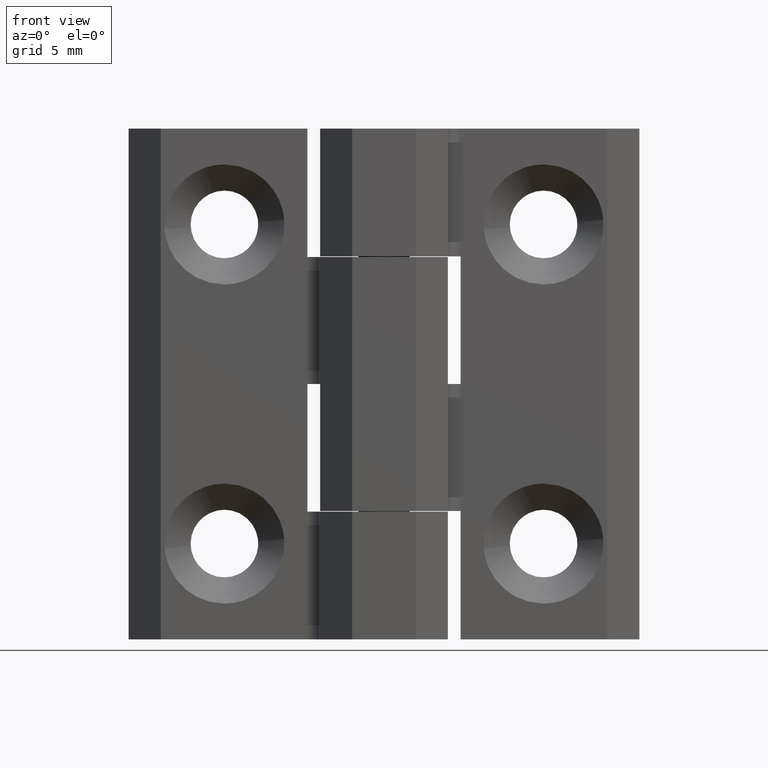
[diagram: clean part render]
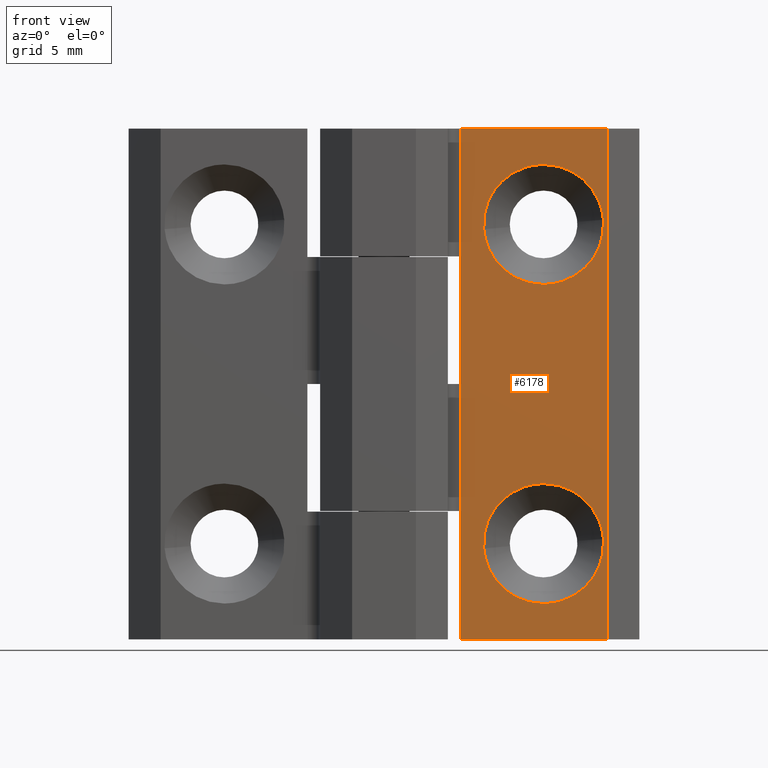
[diagram: same view with one face highlighted and labeled with its STEP entity id]
A machine part, front view. The second image highlights one B-rep face of the part: STEP entity #6178.
In plain terms, the highlighted face is a freeform B-spline surface patch.
Its self-contained STEP definition (entity closure, byte-faithful):
#826=CARTESIAN_POINT('',(17.185512877046289,0.500000023320734,32.868759358664789));
#827=VERTEX_POINT('',#826);
#833=CARTESIAN_POINT('',(12.500000593714040,0.500000023749374,37.200002360619209));
#834=VERTEX_POINT('',#833);
#835=CARTESIAN_POINT('',(12.500000593714040,0.500000023749374,37.200002360619209));
#836=CARTESIAN_POINT('',(16.844636657930899,0.500000023749374,37.200002360619209));
#837=CARTESIAN_POINT('',(17.185512877046289,0.500000023320734,32.868759358664789));
#845=(BOUNDED_CURVE()B_SPLINE_CURVE(2,(#835,#836,#837),.UNSPECIFIED.,.F.,.U.)B_SPLINE_CURVE_WITH_KNOTS((3,3),(0.0,0.236331300563560),.UNSPECIFIED.)CURVE()GEOMETRIC_REPRESENTATION_ITEM()RATIONAL_B_SPLINE_CURVE((1.0,0.723120658686278,0.969723356027386))REPRESENTATION_ITEM(''));
#846=EDGE_CURVE('',#834,#827,#845,.T.);
#848=CARTESIAN_POINT('',(7.814488310381785,0.500000023320733,32.131243728669517));
#849=VERTEX_POINT('',#848);
#850=CARTESIAN_POINT('',(7.814488310381785,0.500000023320733,32.131243728669531));
#851=CARTESIAN_POINT('',(7.799999776761979,0.500000023749374,32.315338007682769));
#852=CARTESIAN_POINT('',(7.799999776761979,0.500000023749374,32.500001543667153));
#853=CARTESIAN_POINT('',(7.799999776761977,0.500000023749374,37.200002360619216));
#854=CARTESIAN_POINT('',(12.500000593714040,0.500000023749374,37.200002360619209));
#862=(BOUNDED_CURVE()B_SPLINE_CURVE(2,(#850,#851,#852,#853,#854),.UNSPECIFIED.,.F.,.U.)B_SPLINE_CURVE_WITH_KNOTS((3,2,3),(0.736331300563560,0.750000000000000,1.0),.UNSPECIFIED.)CURVE()GEOMETRIC_REPRESENTATION_ITEM()RATIONAL_B_SPLINE_CURVE((0.969723356027386,0.983986122500270,1.0,0.707106781186547,1.0))REPRESENTATION_ITEM(''));
#863=EDGE_CURVE('',#849,#834,#862,.T.);
#897=CARTESIAN_POINT('',(12.500000593714040,0.500000023749374,27.800000726715091));
#898=VERTEX_POINT('',#897);
#899=CARTESIAN_POINT('',(12.500000593714040,0.500000023749374,27.800000726715091));
#900=CARTESIAN_POINT('',(8.155364529497193,0.500000023749374,27.800000726715094));
#901=CARTESIAN_POINT('',(7.814488310381785,0.500000023320733,32.131243728669531));
#909=(BOUNDED_CURVE()B_SPLINE_CURVE(2,(#899,#900,#901),.UNSPECIFIED.,.F.,.U.)B_SPLINE_CURVE_WITH_KNOTS((3,3),(0.500000000000000,0.736331300563559),.UNSPECIFIED.)CURVE()GEOMETRIC_REPRESENTATION_ITEM()RATIONAL_B_SPLINE_CURVE((1.0,0.723120658686279,0.969723356027384))REPRESENTATION_ITEM(''));
#910=EDGE_CURVE('',#898,#849,#909,.T.);
#912=CARTESIAN_POINT('',(17.185512877046285,0.500000023320734,32.868759358664789));
#913=CARTESIAN_POINT('',(17.200001410666104,0.500000023749374,32.684665079651538));
#914=CARTESIAN_POINT('',(17.200001410666101,0.500000023749374,32.500001543667153));
#915=CARTESIAN_POINT('',(17.200001410666097,0.500000023749374,27.800000726715091));
#916=CARTESIAN_POINT('',(12.500000593714040,0.500000023749374,27.800000726715091));
#924=(BOUNDED_CURVE()B_SPLINE_CURVE(2,(#912,#913,#914,#915,#916),.UNSPECIFIED.,.F.,.U.)B_SPLINE_CURVE_WITH_KNOTS((3,2,3),(0.236331300563560,0.250000000000000,0.500000000000000),.UNSPECIFIED.)CURVE()GEOMETRIC_REPRESENTATION_ITEM()RATIONAL_B_SPLINE_CURVE((0.969723356027386,0.983986122500270,1.0,0.707106781186547,1.0))REPRESENTATION_ITEM(''));
#925=EDGE_CURVE('',#827,#898,#924,.T.);
#1166=CARTESIAN_POINT('',(17.185512877046289,0.500000023320734,7.868759358664814));
#1167=VERTEX_POINT('',#1166);
#1173=CARTESIAN_POINT('',(12.500000593714040,0.500000023749374,12.200002360619241));
#1174=VERTEX_POINT('',#1173);
#1175=CARTESIAN_POINT('',(12.500000593714040,0.500000023749374,12.200002360619241));
#1176=CARTESIAN_POINT('',(16.844636657930895,0.500000023749374,12.200002360619239));
#1177=CARTESIAN_POINT('',(17.185512877046282,0.500000023320734,7.868759358664814));
#1185=(BOUNDED_CURVE()B_SPLINE_CURVE(2,(#1175,#1176,#1177),.UNSPECIFIED.,.F.,.U.)B_SPLINE_CURVE_WITH_KNOTS((3,3),(0.0,0.236331300563560),.UNSPECIFIED.)CURVE()GEOMETRIC_REPRESENTATION_ITEM()RATIONAL_B_SPLINE_CURVE((1.0,0.723120658686278,0.969723356027385))REPRESENTATION_ITEM(''));
#1186=EDGE_CURVE('',#1174,#1167,#1185,.T.);
#1188=CARTESIAN_POINT('',(7.814488310381786,0.500000023320733,7.131243728669546));
#1189=VERTEX_POINT('',#1188);
#1190=CARTESIAN_POINT('',(7.814488310381786,0.500000023320733,7.131243728669546));
#1191=CARTESIAN_POINT('',(7.799999776761978,0.500000023749374,7.315338007682798));
#1192=CARTESIAN_POINT('',(7.799999776761979,0.500000023749374,7.500001543667180));
#1193=CARTESIAN_POINT('',(7.799999776761977,0.500000023749374,12.200002360619241));
#1194=CARTESIAN_POINT('',(12.500000593714040,0.500000023749374,12.200002360619241));
#1202=(BOUNDED_CURVE()B_SPLINE_CURVE(2,(#1190,#1191,#1192,#1193,#1194),.UNSPECIFIED.,.F.,.U.)B_SPLINE_CURVE_WITH_KNOTS((3,2,3),(0.736331300563560,0.750000000000000,1.0),.UNSPECIFIED.)CURVE()GEOMETRIC_REPRESENTATION_ITEM()RATIONAL_B_SPLINE_CURVE((0.969723356027386,0.983986122500270,1.0,0.707106781186547,1.0))REPRESENTATION_ITEM(''));
#1203=EDGE_CURVE('',#1189,#1174,#1202,.T.);
#1237=CARTESIAN_POINT('',(12.500000593714040,0.500000023749374,2.800000726715120));
#1238=VERTEX_POINT('',#1237);
#1239=CARTESIAN_POINT('',(12.500000593714040,0.500000023749374,2.800000726715120));
#1240=CARTESIAN_POINT('',(8.155364529497193,0.500000023749374,2.800000726715120));
#1241=CARTESIAN_POINT('',(7.814488310381786,0.500000023320733,7.131243728669546));
#1249=(BOUNDED_CURVE()B_SPLINE_CURVE(2,(#1239,#1240,#1241),.UNSPECIFIED.,.F.,.U.)B_SPLINE_CURVE_WITH_KNOTS((3,3),(0.500000000000000,0.736331300563559),.UNSPECIFIED.)CURVE()GEOMETRIC_REPRESENTATION_ITEM()RATIONAL_B_SPLINE_CURVE((1.0,0.723120658686279,0.969723356027384))REPRESENTATION_ITEM(''));
#1250=EDGE_CURVE('',#1238,#1189,#1249,.T.);
#1252=CARTESIAN_POINT('',(17.185512877046289,0.500000023320734,7.868759358664814));
#1253=CARTESIAN_POINT('',(17.200001410666093,0.500000023749374,7.684665079651562));
#1254=CARTESIAN_POINT('',(17.200001410666101,0.500000023749374,7.500001543667180));
#1255=CARTESIAN_POINT('',(17.200001410666097,0.500000023749374,2.800000726715120));
#1256=CARTESIAN_POINT('',(12.500000593714040,0.500000023749374,2.800000726715120));
#1264=(BOUNDED_CURVE()B_SPLINE_CURVE(2,(#1252,#1253,#1254,#1255,#1256),.UNSPECIFIED.,.F.,.U.)B_SPLINE_CURVE_WITH_KNOTS((3,2,3),(0.236331300563560,0.250000000000000,0.500000000000000),.UNSPECIFIED.)CURVE()GEOMETRIC_REPRESENTATION_ITEM()RATIONAL_B_SPLINE_CURVE((0.969723356027386,0.983986122500270,1.0,0.707106781186547,1.0))REPRESENTATION_ITEM(''));
#1265=EDGE_CURVE('',#1167,#1238,#1264,.T.);
#5351=CARTESIAN_POINT('',(6.000000878702930,0.500000023749223,10.050000477349499));
#5352=VERTEX_POINT('',#5351);
#5489=CARTESIAN_POINT('',(6.000000878702930,0.500000023749223,20.000000949949150));
#5490=VERTEX_POINT('',#5489);
#5556=CARTESIAN_POINT('',(6.000000878702930,0.500000023749170,30.000001424923550));
#5557=VERTEX_POINT('',#5556);
#5643=CARTESIAN_POINT('',(6.000000878698530,0.500000023749230,40.000001899898052));
#5644=VERTEX_POINT('',#5643);
#5658=CARTESIAN_POINT('',(17.500001424919201,0.500000023750147,40.000001899898052));
#5659=VERTEX_POINT('',#5658);
#5660=CARTESIAN_POINT('',(17.500001424919201,0.500000023750147,40.000001899898052));
#5661=CARTESIAN_POINT('',(6.000000878698530,0.500000023749230,40.000001899898052));
#5662=QUASI_UNIFORM_CURVE('',1,(#5660,#5661),.UNSPECIFIED.,.F.,.U.);
#5663=EDGE_CURVE('',#5659,#5644,#5662,.T.);
#5750=CARTESIAN_POINT('',(17.500001424919201,0.500000023750147,0.0));
#5751=VERTEX_POINT('',#5750);
#5763=CARTESIAN_POINT('',(17.500001424919201,0.500000023750147,40.000001899898052));
#5764=CARTESIAN_POINT('',(17.500001424919201,0.500000023750147,0.0));
#5765=QUASI_UNIFORM_CURVE('',1,(#5763,#5764),.UNSPECIFIED.,.F.,.U.);
#5766=EDGE_CURVE('',#5659,#5751,#5765,.T.);
#5798=CARTESIAN_POINT('',(6.000000878702930,0.500000023749170,0.0));
#5799=VERTEX_POINT('',#5798);
#5807=CARTESIAN_POINT('',(6.000000878702930,0.500000023749170,0.0));
#5808=CARTESIAN_POINT('',(6.000000878702930,0.500000023749223,10.050000477349499));
#5809=QUASI_UNIFORM_CURVE('',1,(#5807,#5808),.UNSPECIFIED.,.F.,.U.);
#5810=EDGE_CURVE('',#5799,#5352,#5809,.T.);
#5819=CARTESIAN_POINT('',(6.000000878702930,0.500000023749170,30.000001424923550));
#5820=CARTESIAN_POINT('',(6.000000878702930,0.500000023749223,20.000000949949150));
#5821=QUASI_UNIFORM_CURVE('',1,(#5819,#5820),.UNSPECIFIED.,.F.,.U.);
#5822=EDGE_CURVE('',#5557,#5490,#5821,.T.);
#5875=CARTESIAN_POINT('',(6.000000878698530,0.500000023749230,40.000001899898052));
#5876=CARTESIAN_POINT('',(6.000000878702930,0.500000023749170,30.000001424923550));
#5877=QUASI_UNIFORM_CURVE('',1,(#5875,#5876),.UNSPECIFIED.,.F.,.U.);
#5878=EDGE_CURVE('',#5644,#5557,#5877,.T.);
#5990=CARTESIAN_POINT('',(17.500001424919201,0.500000023750147,0.0));
#5991=CARTESIAN_POINT('',(6.000000878702930,0.500000023749170,0.0));
#5992=QUASI_UNIFORM_CURVE('',1,(#5990,#5991),.UNSPECIFIED.,.F.,.U.);
#5993=EDGE_CURVE('',#5751,#5799,#5992,.T.);
#6041=CARTESIAN_POINT('',(6.000000878702930,0.500000023749223,20.000000949949150));
#6042=CARTESIAN_POINT('',(6.000000878702930,0.500000023749223,10.050000477349499));
#6043=QUASI_UNIFORM_CURVE('',1,(#6041,#6042),.UNSPECIFIED.,.F.,.U.);
#6044=EDGE_CURVE('',#5490,#5352,#6043,.T.);
#6152=CARTESIAN_POINT('',(5.425575873704038,0.500000023750147,-1.997999874464041));
#6153=CARTESIAN_POINT('',(18.074426738367741,0.500000023750147,-1.997999874464041));
#6154=CARTESIAN_POINT('',(5.425575873704038,0.500000023750147,41.997999986222659));
#6155=CARTESIAN_POINT('',(18.074426738367741,0.500000023750147,41.997999986222659));
#6156=B_SPLINE_SURFACE_WITH_KNOTS('',1,1,((#6152,#6154),(#6153,#6155)),.UNSPECIFIED.,.F.,.F.,.U.,(2,2),(2,2),(0.0,12.648850864663700),(0.0,43.995999860686702),.UNSPECIFIED.);
#6157=ORIENTED_EDGE('',*,*,#5993,.F.);
#6158=ORIENTED_EDGE('',*,*,#5766,.F.);
#6159=ORIENTED_EDGE('',*,*,#5663,.T.);
#6160=ORIENTED_EDGE('',*,*,#5878,.T.);
#6161=ORIENTED_EDGE('',*,*,#5822,.T.);
#6162=ORIENTED_EDGE('',*,*,#6044,.T.);
#6163=ORIENTED_EDGE('',*,*,#5810,.F.);
#6164=EDGE_LOOP('',(#6157,#6158,#6159,#6160,#6161,#6162,#6163));
#6165=FACE_OUTER_BOUND('',#6164,.T.);
#6166=ORIENTED_EDGE('',*,*,#1250,.T.);
#6167=ORIENTED_EDGE('',*,*,#1203,.T.);
#6168=ORIENTED_EDGE('',*,*,#1186,.T.);
#6169=ORIENTED_EDGE('',*,*,#1265,.T.);
#6170=EDGE_LOOP('',(#6166,#6167,#6168,#6169));
#6171=FACE_BOUND('',#6170,.T.);
#6172=ORIENTED_EDGE('',*,*,#910,.T.);
#6173=ORIENTED_EDGE('',*,*,#863,.T.);
#6174=ORIENTED_EDGE('',*,*,#846,.T.);
#6175=ORIENTED_EDGE('',*,*,#925,.T.);
#6176=EDGE_LOOP('',(#6172,#6173,#6174,#6175));
#6177=FACE_BOUND('',#6176,.T.);
#6178=ADVANCED_FACE('',(#6165,#6171,#6177),#6156,.T.);